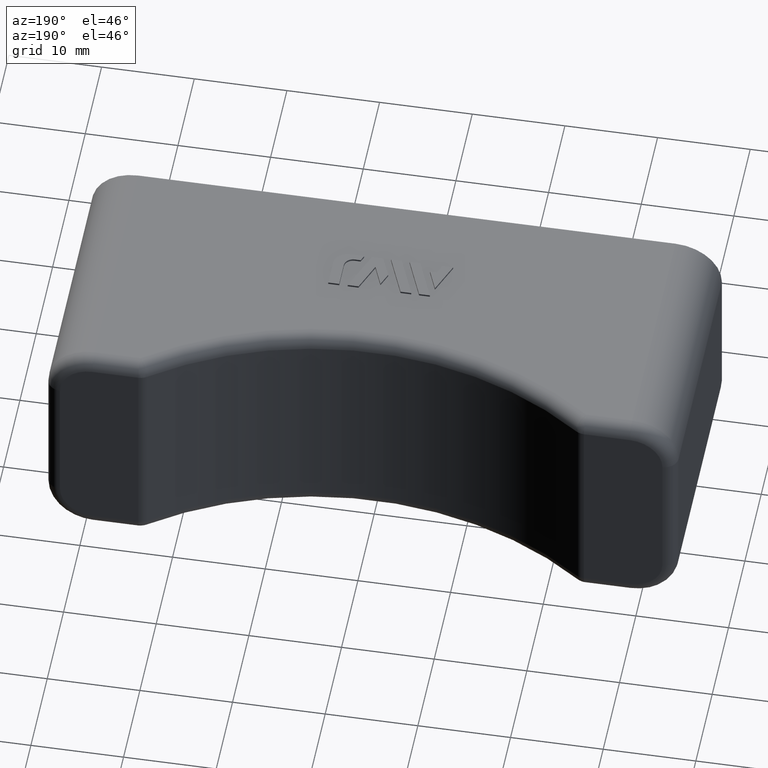
[diagram: clean part render]
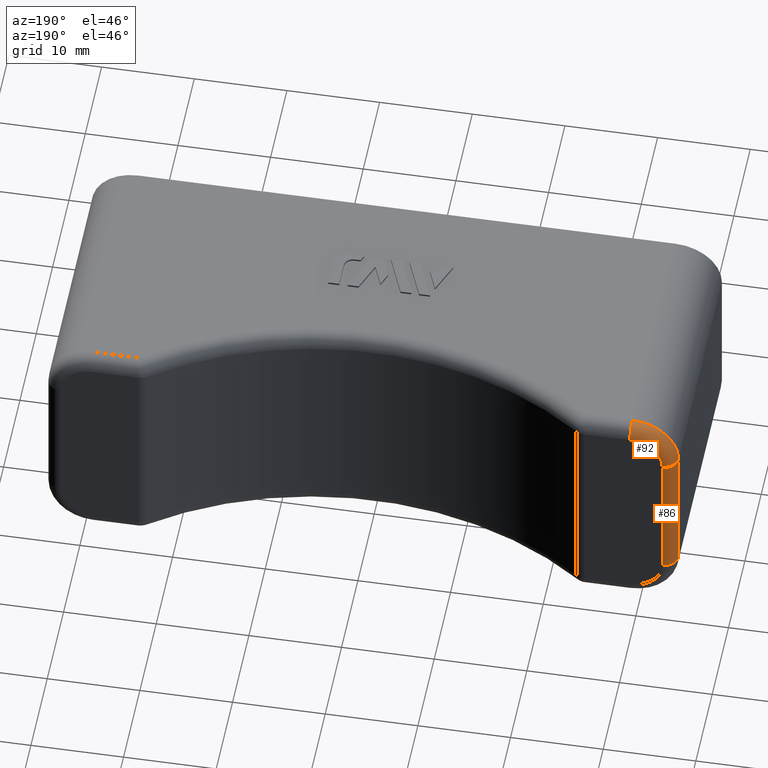
[diagram: same view with one multi-face feature highlighted, each face labeled with its STEP entity id]
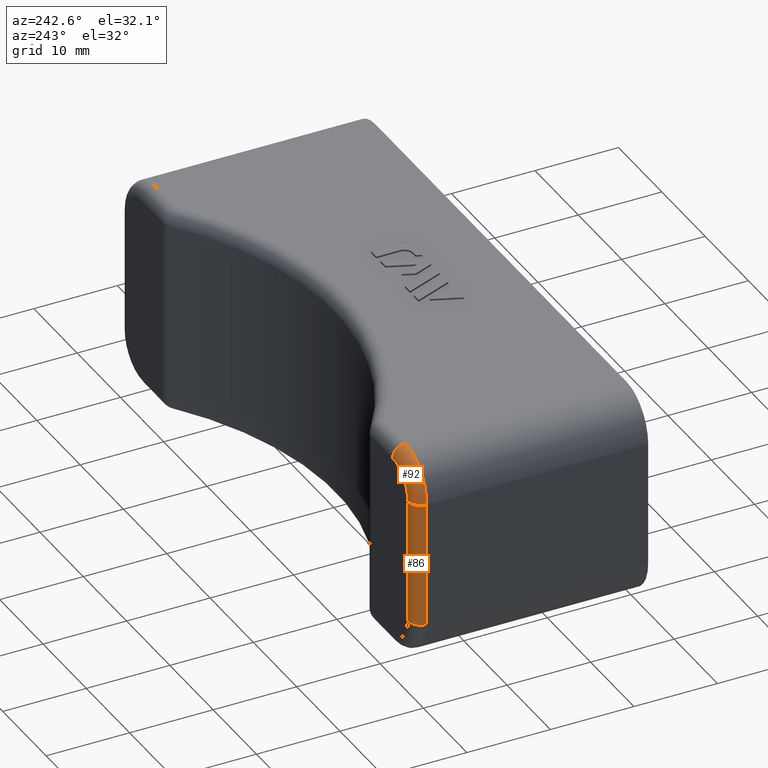
[diagram: same view with one multi-face feature highlighted, each face labeled with its STEP entity id]
A machine part, auxiliary view. The highlighted faces form ONE feature: a constant-radius fillet chain: 2 tangent blend faces with common blend radius 1.5 mm. The faces share edges in the B-rep.
A second angle (auxiliary view) of the same feature is appended — it is thin or edge-on in the first view.
Their STEP definitions:
[1] entity #86 (Cylinder):
#86 = ADVANCED_FACE( '', ( #546 ), #547, .T. );
#546 = FACE_OUTER_BOUND( '', #1388, .T. );
#547 = CYLINDRICAL_SURFACE( '', #1389, 1.50000000000000 );
#1388 = EDGE_LOOP( '', ( #2541, #2542, #2543, #2544 ) );
#1389 = AXIS2_PLACEMENT_3D( '', #2545, #2546, #2547 );
#2541 = ORIENTED_EDGE( '', *, *, #5653, .T. );
#2542 = ORIENTED_EDGE( '', *, *, #5654, .F. );
#2543 = ORIENTED_EDGE( '', *, *, #5655, .F. );
#2544 = ORIENTED_EDGE( '', *, *, #5656, .F. );
#2545 = CARTESIAN_POINT( '', ( -32.5000000000000, 26.5000000000000, -12.5000000000000 ) );
#2546 = DIRECTION( '', ( 0.000000000000000, 0.000000000000000, -1.00000000000000 ) );
#2547 = DIRECTION( '', ( 1.00000000000000, 0.000000000000000, 0.000000000000000 ) );
#5653 = EDGE_CURVE( '', #6967, #6968, #6969, .T. );
#5654 = EDGE_CURVE( '', #6970, #6968, #6971, .T. );
#5655 = EDGE_CURVE( '', #6972, #6970, #6973, .T. );
#5656 = EDGE_CURVE( '', #6967, #6972, #6974, .F. );
#6967 = VERTEX_POINT( '', #8937 );
#6968 = VERTEX_POINT( '', #8938 );
#6969 = CIRCLE( '', #8939, 1.50000000000000 );
#6970 = VERTEX_POINT( '', #8940 );
#6971 = LINE( '', #8941, #8942 );
#6972 = VERTEX_POINT( '', #8943 );
#6973 = CIRCLE( '', #8944, 1.50000000000000 );
#6974 = LINE( '', #8945, #8946 );
#8937 = CARTESIAN_POINT( '', ( -34.0000000000000, 26.5000000000000, 7.50000000000000 ) );
#8938 = CARTESIAN_POINT( '', ( -32.5000000000000, 28.0000000000000, 7.50000000000000 ) );
#8939 = AXIS2_PLACEMENT_3D( '', #10773, #10774, #10775 );
#8940 = CARTESIAN_POINT( '', ( -32.5000000000000, 28.0000000000000, -7.50000000000000 ) );
#8941 = CARTESIAN_POINT( '', ( -32.5000000000000, 28.0000000000000, -12.5000000000000 ) );
#8942 = VECTOR( '', #10776, 1000.00000000000 );
#8943 = CARTESIAN_POINT( '', ( -34.0000000000000, 26.5000000000000, -7.50000000000000 ) );
#8944 = AXIS2_PLACEMENT_3D( '', #10777, #10778, #10779 );
#8945 = CARTESIAN_POINT( '', ( -34.0000000000000, 26.5000000000000, -12.5000000000000 ) );
#8946 = VECTOR( '', #10780, 1000.00000000000 );
#10773 = CARTESIAN_POINT( '', ( -32.5000000000000, 26.5000000000000, 7.50000000000000 ) );
#10774 = DIRECTION( '', ( 0.000000000000000, 0.000000000000000, -1.00000000000000 ) );
#10775 = DIRECTION( '', ( -1.00000000000000, 0.000000000000000, 0.000000000000000 ) );
#10776 = DIRECTION( '', ( 0.000000000000000, 0.000000000000000, 1.00000000000000 ) );
#10777 = CARTESIAN_POINT( '', ( -32.5000000000000, 26.5000000000000, -7.50000000000000 ) );
#10778 = DIRECTION( '', ( 0.000000000000000, 0.000000000000000, -1.00000000000000 ) );
#10779 = DIRECTION( '', ( -1.00000000000000, 0.000000000000000, 0.000000000000000 ) );
#10780 = DIRECTION( '', ( 0.000000000000000, 0.000000000000000, 1.00000000000000 ) );
[2] entity #92 (Torus):
#92 = ADVANCED_FACE( '', ( #558 ), #559, .T. );
#558 = FACE_OUTER_BOUND( '', #1400, .T. );
#559 = TOROIDAL_SURFACE( '', #1401, 3.50000000000000, 1.50000000000000 );
#1400 = EDGE_LOOP( '', ( #2584, #2585, #2586, #2587 ) );
#1401 = AXIS2_PLACEMENT_3D( '', #2588, #2589, #2590 );
#2584 = ORIENTED_EDGE( '', *, *, #5671, .T. );
#2585 = ORIENTED_EDGE( '', *, *, #5672, .F. );
#2586 = ORIENTED_EDGE( '', *, *, #5653, .F. );
#2587 = ORIENTED_EDGE( '', *, *, #5673, .F. );
#2588 = CARTESIAN_POINT( '', ( -29.0000000000000, 26.5000000000000, 7.50000000000000 ) );
#2589 = DIRECTION( '', ( 0.000000000000000, 1.00000000000000, 0.000000000000000 ) );
#2590 = DIRECTION( '', ( 0.000000000000000, 0.000000000000000, 1.00000000000000 ) );
#5653 = EDGE_CURVE( '', #6967, #6968, #6969, .T. );
#5671 = EDGE_CURVE( '', #6903, #6997, #6998, .T. );
#5672 = EDGE_CURVE( '', #6968, #6997, #6999, .T. );
#5673 = EDGE_CURVE( '', #6903, #6967, #7000, .F. );
#6903 = VERTEX_POINT( '', #8840 );
#6967 = VERTEX_POINT( '', #8937 );
#6968 = VERTEX_POINT( '', #8938 );
#6969 = CIRCLE( '', #8939, 1.50000000000000 );
#6997 = VERTEX_POINT( '', #8974 );
#6998 = CIRCLE( '', #8975, 1.50000000000000 );
#6999 = CIRCLE( '', #8976, 3.50000000000000 );
#7000 = CIRCLE( '', #8977, 5.00000000000000 );
#8840 = CARTESIAN_POINT( '', ( -29.0000000000000, 26.5000000000000, 12.5000000000000 ) );
#8937 = CARTESIAN_POINT( '', ( -34.0000000000000, 26.5000000000000, 7.50000000000000 ) );
#8938 = CARTESIAN_POINT( '', ( -32.5000000000000, 28.0000000000000, 7.50000000000000 ) );
#8939 = AXIS2_PLACEMENT_3D( '', #10773, #10774, #10775 );
#8974 = CARTESIAN_POINT( '', ( -29.0000000000000, 28.0000000000000, 11.0000000000000 ) );
#8975 = AXIS2_PLACEMENT_3D( '', #10813, #10814, #10815 );
#8976 = AXIS2_PLACEMENT_3D( '', #10816, #10817, #10818 );
#8977 = AXIS2_PLACEMENT_3D( '', #10819, #10820, #10821 );
#10773 = CARTESIAN_POINT( '', ( -32.5000000000000, 26.5000000000000, 7.50000000000000 ) );
#10774 = DIRECTION( '', ( 0.000000000000000, 0.000000000000000, -1.00000000000000 ) );
#10775 = DIRECTION( '', ( -1.00000000000000, 0.000000000000000, 0.000000000000000 ) );
#10813 = CARTESIAN_POINT( '', ( -29.0000000000000, 26.5000000000000, 11.0000000000000 ) );
#10814 = DIRECTION( '', ( -1.00000000000000, 0.000000000000000, 0.000000000000000 ) );
#10815 = DIRECTION( '', ( 0.000000000000000, 0.000000000000000, 1.00000000000000 ) );
#10816 = CARTESIAN_POINT( '', ( -29.0000000000000, 28.0000000000000, 7.50000000000000 ) );
#10817 = DIRECTION( '', ( 0.000000000000000, 1.00000000000000, 0.000000000000000 ) );
#10818 = DIRECTION( '', ( 0.000000000000000, 0.000000000000000, 1.00000000000000 ) );
#10819 = CARTESIAN_POINT( '', ( -29.0000000000000, 26.5000000000000, 7.50000000000000 ) );
#10820 = DIRECTION( '', ( 0.000000000000000, 1.00000000000000, 0.000000000000000 ) );
#10821 = DIRECTION( '', ( 0.000000000000000, 0.000000000000000, 1.00000000000000 ) );